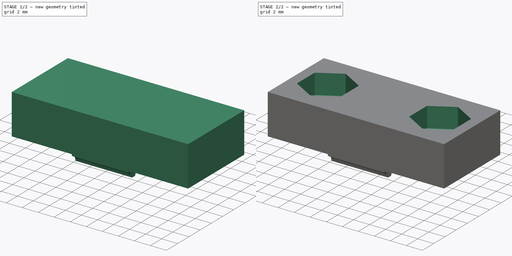
[diagram: build sequence overview — one tinted view per stage of 2, left to right]
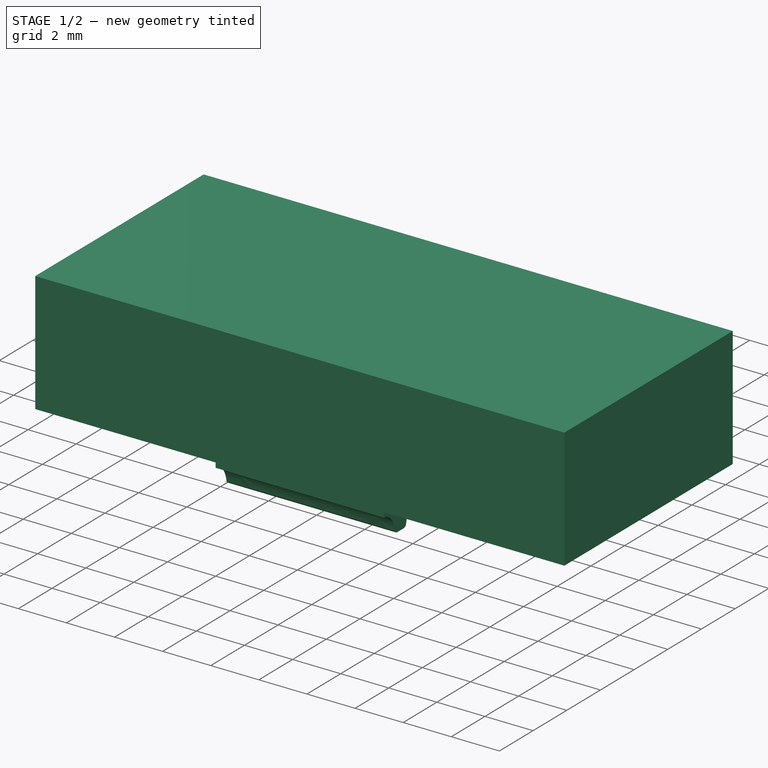
[diagram: stage 1 of 2 — iso view after this stage's code; geometry added in this stage tinted green]
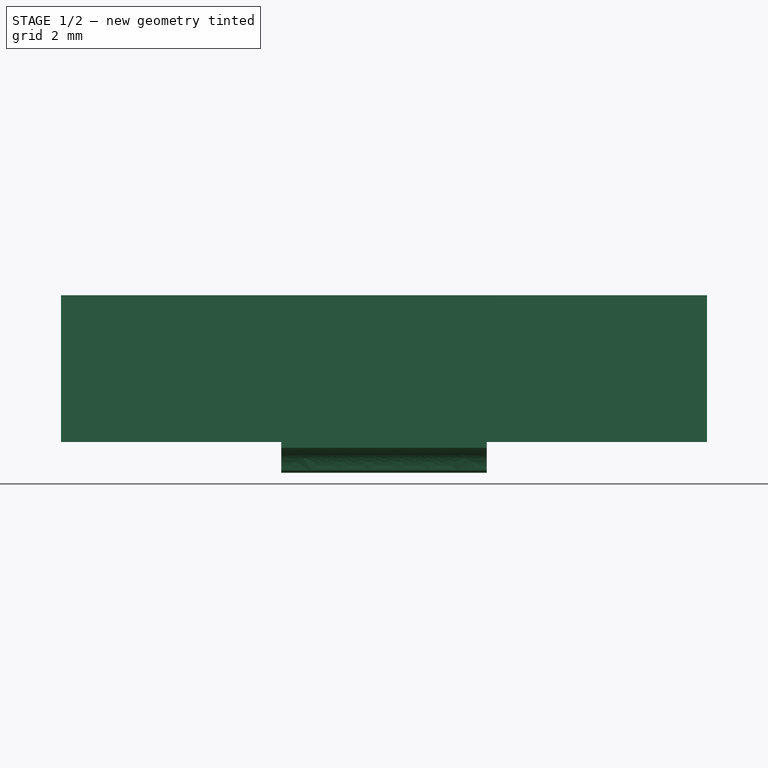
[diagram: stage 1 of 2 — front view after this stage's code; geometry added in this stage tinted green]
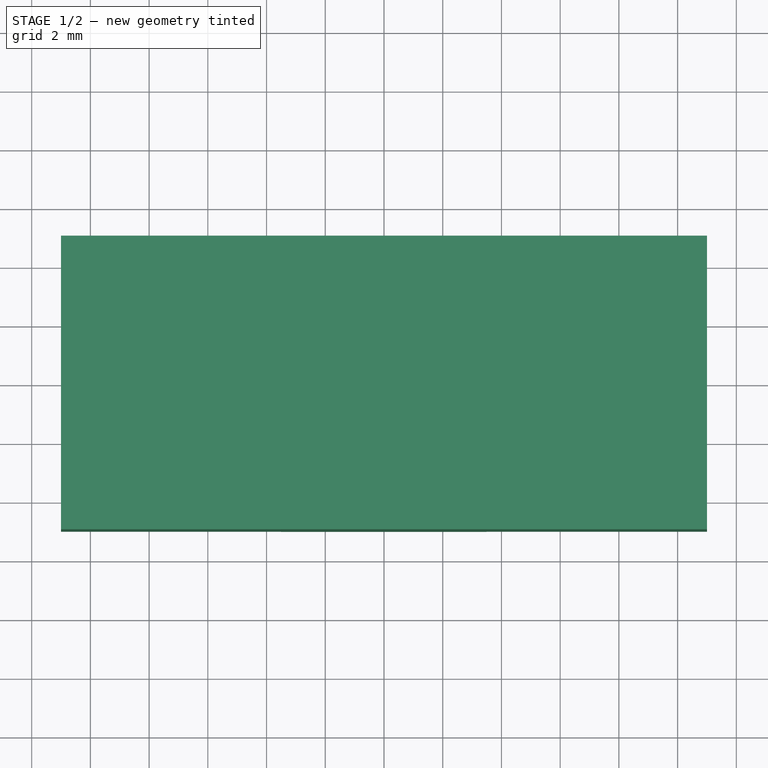
[diagram: stage 1 of 2 — top view after this stage's code; geometry added in this stage tinted green]
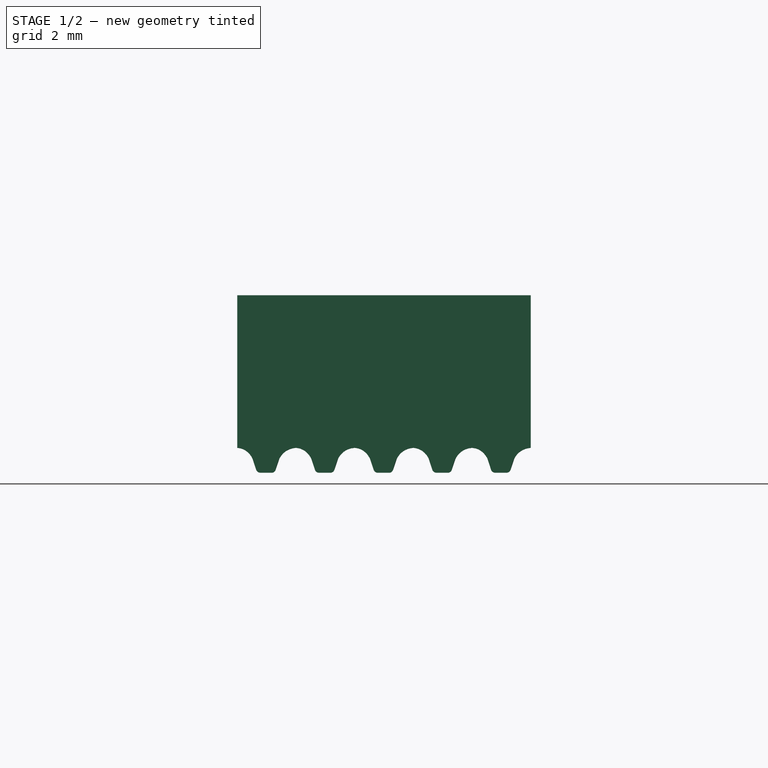
[diagram: stage 1 of 2 — right view after this stage's code; geometry added in this stage tinted green]
FCSTD DOCUMENT  (FreeCAD 0.18R14090 (Git))
Label: BedBeltClamp2_Alt2
License: All rights reserved
LicenseURL: http://en.wikipedia.org/wiki/All_rights_reserved
objects: Sketcher::SketchObject×4, PartDesign::Pad×2, PartDesign::Plane×2, PartDesign::Pocket×2, PartDesign::Body×1, App::Part×1
note: 15 computed .brp shape members not serialized (recipe doc carries the construction recipe); baked Part::Feature solids carry a one-line shape summary decoded from their .brp

FEATURE [Sketcher::SketchObject] Sketch  label="C_BaseSketch"
  MapMode = 5
  Support = -> [XY_Plane001]
  sketch-geometry (4):
    g0: LineSegment StartX=-11 StartY=-5 StartZ=0 EndX=11 EndY=-5 EndZ=0
    g1: LineSegment StartX=11 StartY=-5 StartZ=0 EndX=11 EndY=5 EndZ=0
    g2: LineSegment StartX=11 StartY=5 StartZ=0 EndX=-11 EndY=5 EndZ=0
    g3: LineSegment StartX=-11 StartY=5 StartZ=0 EndX=-11 EndY=-5 EndZ=0
  constraints (10):
    c: Coincident(g0,g1)
    c: Coincident(g1,g2)
    c: Coincident(g2,g3)
    c: Coincident(g3,g0)
    c: Horizontal(g0)
    c: Vertical(g1)
    c: Symmetric(g2,g1,g-2)
    c: Distance(g3) = 10
    c: Distance(g2) = 22
    c: Symmetric(g0,g2,g-1)
FEATURE [PartDesign::Pad] Pad  label="C_BasePad"
  Length = 5
  Length2 = 100
  Profile = -> Sketch
  Type = 0
FEATURE [PartDesign::Plane] DatumPlane  label="C_TeethPlane"
  AttachmentOffset = pos=(-5,-0.2,0) rot=(0,0,1;0rad)
  MapMode = 5
  Placement = pos=(-1e-12,-5,-0.2) rot=(0.57735,0.57735,0.57735;2.0944rad)
  Support = -> [YZ_Plane001]
FEATURE [Sketcher::SketchObject] Sketch008  label="C_TeethSketch"
  MapMode = 5
  Placement = pos=(-1e-12,-5,-0.2) rot=(0.57735,0.57735,0.57735;2.0944rad)
  Support = -> [DatumPlane]
  sketch-geometry (8):
    g0: BSplineCurve PolesCount=12 KnotsCount=8 Degree=3 IsPeriodic=0
    g1: BSplineCurve PolesCount=12 KnotsCount=8 Degree=3 IsPeriodic=0
    g2: BSplineCurve PolesCount=12 KnotsCount=8 Degree=3 IsPeriodic=0
    g3: LineSegment StartX=10 StartY=0.958783 StartZ=0 EndX=0 EndY=0.958783 EndZ=0
    g4: LineSegment StartX=0 StartY=0.958783 StartZ=0 EndX=0 EndY=0 EndZ=0
    g5: BSplineCurve PolesCount=12 KnotsCount=8 Degree=3 IsPeriodic=0
    g6: BSplineCurve PolesCount=12 KnotsCount=8 Degree=3 IsPeriodic=0
    g7: LineSegment StartX=10 StartY=0 StartZ=0 EndX=10 EndY=0.958783 EndZ=0
  constraints (22):
    c: Coincident(g1,g0)
    c: PointOnObject(g0,g-1)
    c: PointOnObject(g1,g-1)
    c: PointOnObject(g2,g-1)
    c: Horizontal(g3)
    c: Coincident(g4,g3)
    c: Coincident(g4,g-1)
    c: Vertical(g4)
    c: Coincident(g5,g2)
    c: PointOnObject(g5,g-1)
    c: Coincident(g6,g5)
    c: PointOnObject(g6,g-1)
    c: Distance(g0,g0) = 2
    c: Distance(g0,g1) = 2
    c: Distance(g1,g2) = 2
    c: Distance(g2,g5) = 2
    c: Distance(g5,g6) = 2
    c: Coincident(g7,g6)
    c: Coincident(g7,g3)
    c: Vertical(g7)
    c: Coincident(g1,g2)
    c: Coincident(g0,g4)
FEATURE [PartDesign::Pad] Pad001  label="C_TeethPad"
  BaseFeature = -> Pad
  Length = 7
  Length2 = 100
  Midplane = true
  Profile = -> Sketch008
  Type = 0
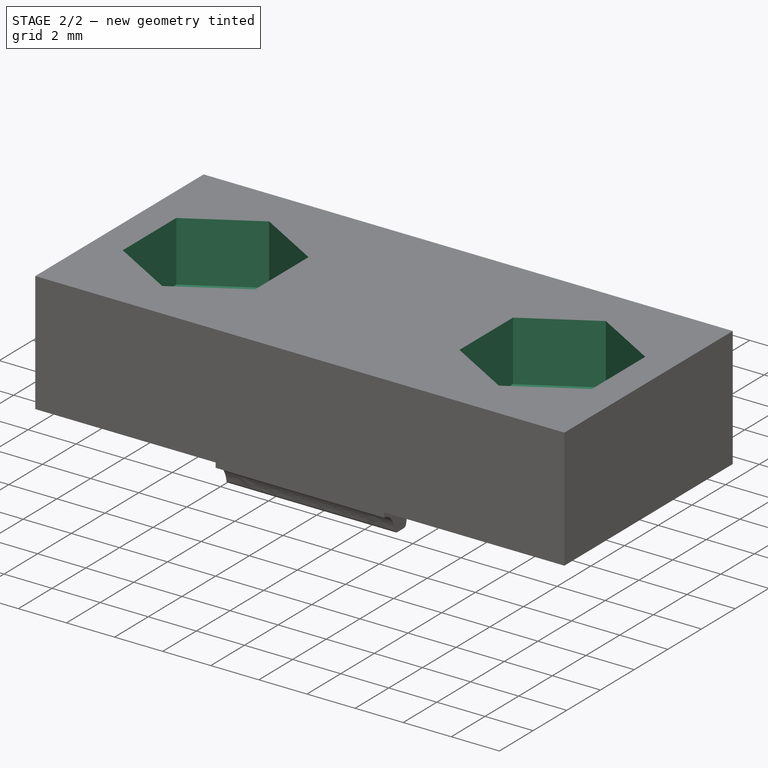
[diagram: stage 2 of 2 — iso view after this stage's code; geometry added in this stage tinted green]
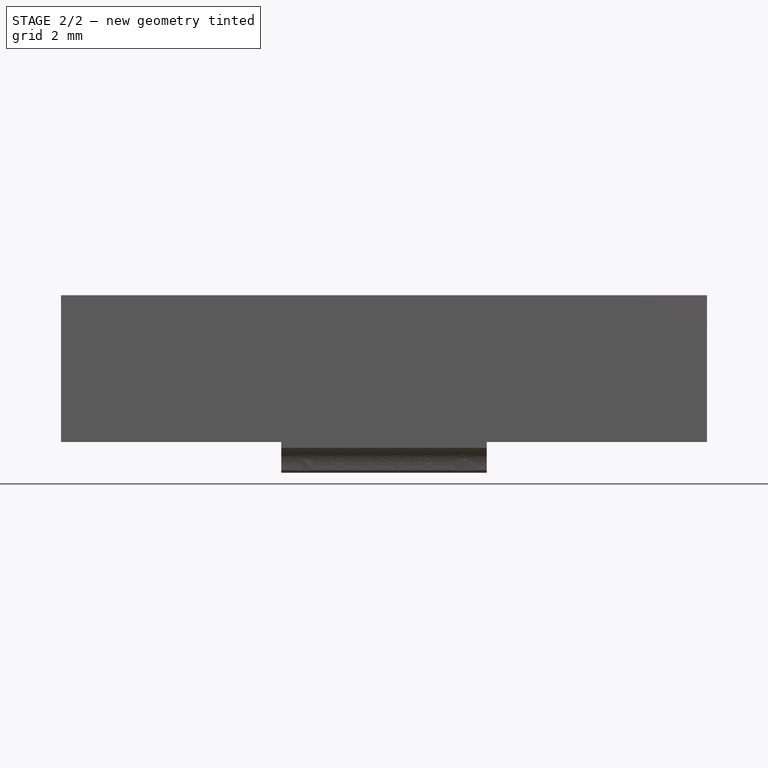
[diagram: stage 2 of 2 — front view after this stage's code; geometry added in this stage tinted green]
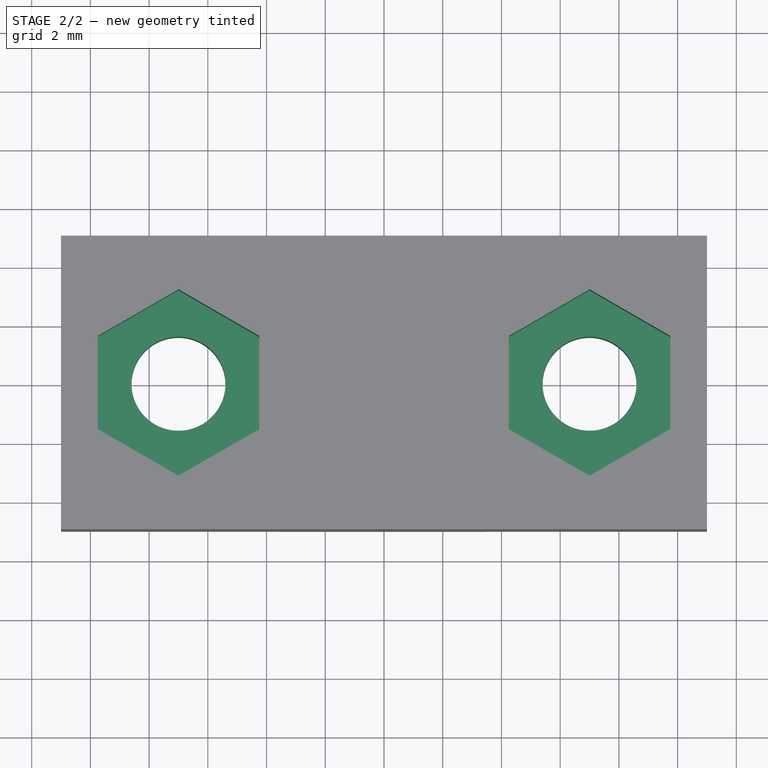
[diagram: stage 2 of 2 — top view after this stage's code; geometry added in this stage tinted green]
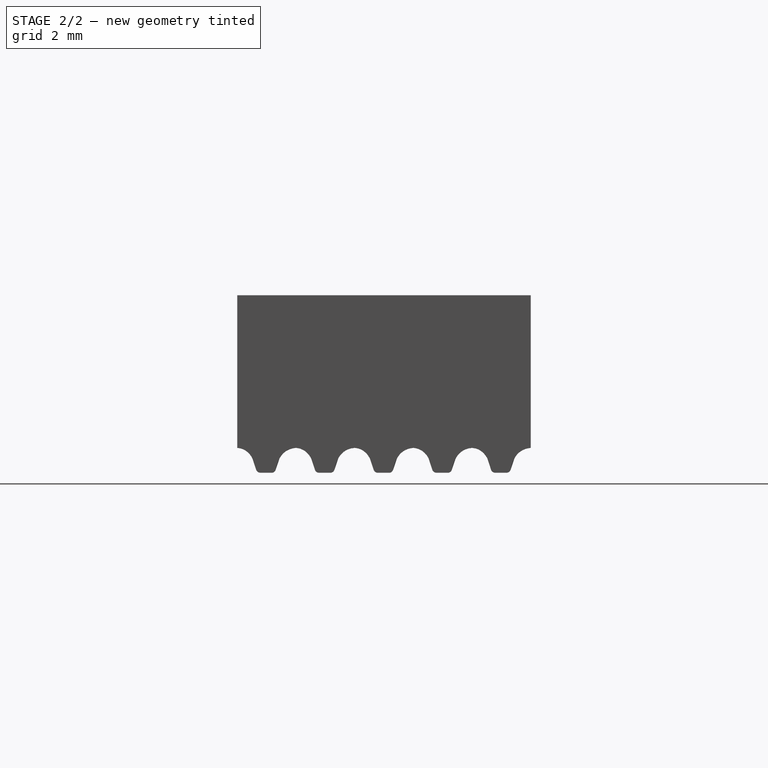
[diagram: stage 2 of 2 — right view after this stage's code; geometry added in this stage tinted green]
FEATURE [Sketcher::SketchObject] Sketch009  label="C_ScrewHolesSketch"
  MapMode = 5
  Support = -> [XY_Plane001]
  sketch-geometry (2):
    g0: Circle CenterX=-7 CenterY=0 CenterZ=0 NormalX=0 NormalY=0 NormalZ=1 AngleXU=0 Radius=1.6
    g1: Circle CenterX=7 CenterY=0 CenterZ=0 NormalX=0 NormalY=0 NormalZ=1 AngleXU=0 Radius=1.6
  constraints (5):
    c: PointOnObject(g0,g-1)
    c: Distance(g1,g0) = 14
    c: Symmetric(g1,g0,g-2)
    c: Equal(g1,g0)
    c: Radius(g0) = 1.6
FEATURE [PartDesign::Pocket] Pocket  label="C_ScrewHolesPocket"
  BaseFeature = -> Pad001
  Length = 5
  Length2 = 100
  Profile = -> Sketch009
  Reversed = true
  Type = 1
FEATURE [PartDesign::Plane] DatumPlane001  label="C_NutsPlane"
  AttachmentOffset = pos=(0,0,5) rot=(0,0,1;0rad)
  MapMode = 5
  Placement = pos=(0,0,5) rot=(0,0,1;0rad)
  Support = -> [XY_Plane001]
FEATURE [Sketcher::SketchObject] Sketch010  label="C_NutsSketch"
  ExternalGeometry = -> [Sketch009]
  MapMode = 5
  Placement = pos=(0,0,5) rot=(0,0,1;0rad)
  Support = -> [DatumPlane001]
  sketch-geometry (14):
    g0: LineSegment StartX=-4.25 StartY=-1.58771 StartZ=0 EndX=-4.25 EndY=1.58771 EndZ=0
    g1: LineSegment StartX=-4.25 StartY=1.58771 StartZ=0 EndX=-7 EndY=3.17543 EndZ=0
    g2: LineSegment StartX=-7 StartY=3.17543 StartZ=0 EndX=-9.75 EndY=1.58771 EndZ=0
    g3: LineSegment StartX=-9.75 StartY=1.58771 StartZ=0 EndX=-9.75 EndY=-1.58771 EndZ=0
    g4: LineSegment StartX=-9.75 StartY=-1.58771 StartZ=0 EndX=-7 EndY=-3.17543 EndZ=0
    g5: LineSegment StartX=-7 StartY=-3.17543 StartZ=0 EndX=-4.25 EndY=-1.58771 EndZ=0
    g6: Circle [constr] CenterX=-7 CenterY=0 CenterZ=0 NormalX=0 NormalY=0 NormalZ=1 AngleXU=0 Radius=3.17543
    g7: LineSegment StartX=4.25 StartY=-1.58771 StartZ=0 EndX=7 EndY=-3.17543 EndZ=0
    g8: LineSegment StartX=7 StartY=-3.17543 StartZ=0 EndX=9.75 EndY=-1.58771 EndZ=0
    g9: LineSegment StartX=9.75 StartY=-1.58771 StartZ=0 EndX=9.75 EndY=1.58771 EndZ=0
    g10: LineSegment StartX=9.75 StartY=1.58771 StartZ=0 EndX=7 EndY=3.17543 EndZ=0
    g11: LineSegment StartX=7 StartY=3.17543 StartZ=0 EndX=4.25 EndY=1.58771 EndZ=0
    g12: LineSegment StartX=4.25 StartY=1.58771 StartZ=0 EndX=4.25 EndY=-1.58771 EndZ=0
    g13: Circle [constr] CenterX=7 CenterY=0 CenterZ=0 NormalX=0 NormalY=0 NormalZ=1 AngleXU=0 Radius=3.17543
  constraints (32):
    c: Coincident(g0,g1)
    c: Coincident(g1,g2)
    c: Coincident(g2,g3)
    c: Coincident(g3,g4)
    c: Coincident(g4,g5)
    c: Coincident(g5,g0)
    c: Equal(g0, g1-g5) x5
    c: PointOnObject(g0,g6)
    c: PointOnObject(g1,g6)
    c: PointOnObject(g2,g6)
    c: PointOnObject(g3,g6)
    c: PointOnObject(g4,g6)
    c: PointOnObject(g5,g6)
    c: Coincident(g6,g-3)
    c: Coincident(g7,g8)
    c: Coincident(g8,g9)
    c: Coincident(g9,g10)
    c: Coincident(g10,g11)
    c: Coincident(g11,g12)
    c: Coincident(g12,g7)
    c: Equal(g7, g8-g12) x5
    c: PointOnObject(g7,g13)
    c: PointOnObject(g8,g13)
    c: PointOnObject(g9,g13)
    c: PointOnObject(g10,g13)
    c: PointOnObject(g11,g13)
    c: PointOnObject(g12,g13)
    c: Coincident(g13,g-4)
    c: Vertical(g12)
    c: Vertical(g0)
    c: Equal(g0,g12)
    c: Distance(g0,g2) = 5.5
FEATURE [PartDesign::Pocket] Pocket001  label="C_NutsPocket"
  BaseFeature = -> Pocket
  Length = 2.5
  Length2 = 100
  Profile = -> Sketch010
  Type = 0
FEATURE [PartDesign::Body] Body  label="ClampBody"
  Group = -> [Sketch,Pad,Sketch008,DatumPlane,Pad001,Sketch009,Pocket,DatumPlane001,Sketch010,Pocket001]
  Origin = -> Origin001
  Tip = -> Pocket001
FEATURE [App::Part] Part  label="ClampPart"
  Group = -> [Body]
  License = CC BY 3.0
  LicenseURL = http://creativecommons.org/licenses/by/3.0/
  Origin = -> Origin
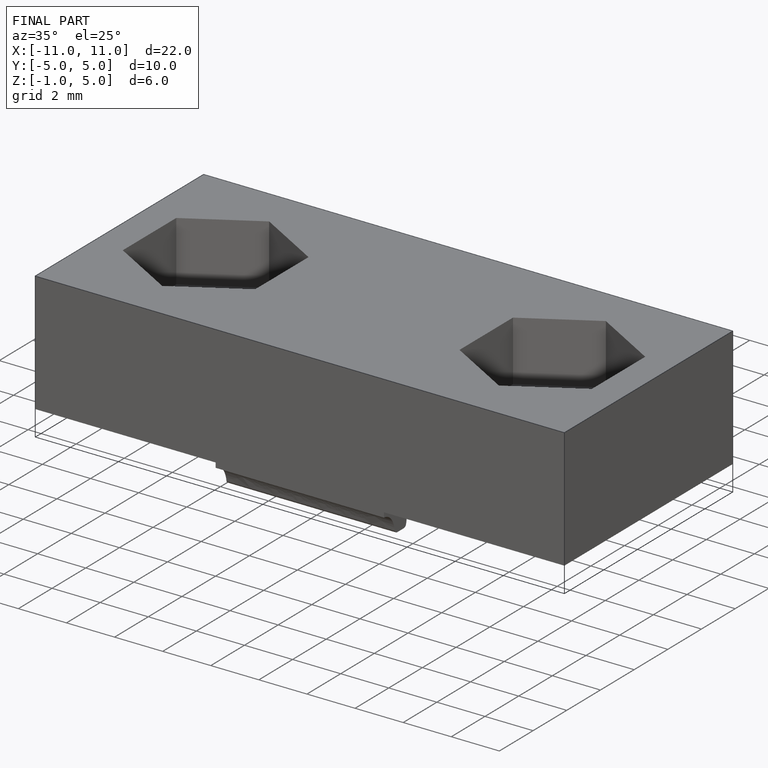
[diagram: finished part — iso view with bounding-box wireframe]
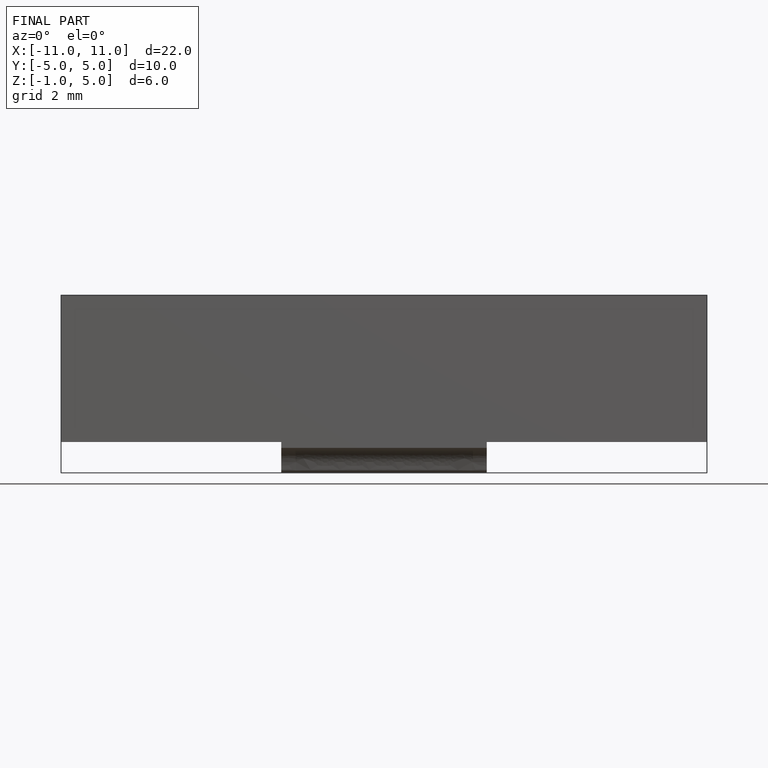
[diagram: finished part — front view with bounding-box wireframe]
